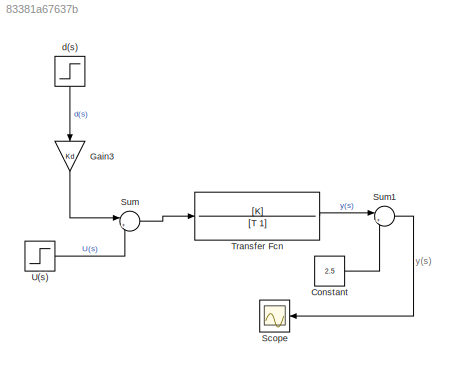
MODEL slx_83381a67637b
KIND model
CONFIG AbsTol = auto
CONFIG EnableMultiTasking = off
CONFIG FixedStep = auto
CONFIG MaxStep = auto
CONFIG MinStep = auto
CONFIG RelTol = 1e-3
CONFIG SampleTimeConstraint = Unconstrained
CONFIG SolverName = VariableStepAuto
CONFIG StartTime = 0.0
CONFIG StopTime = 10.0
BLOCK [Constant] Constant
  Value = 2.5
BLOCK [Gain] Gain3
  Gain = Kd
  NameLocation = left
BLOCK [Scope] Scope
  Floating = off
  NumInputPorts = 1
  Ports = [1]
  ScopeSpecificationString = Simulink.scopes.TimeScopeBlockCfg('CurrentConfiguration', extmgr.ConfigurationSet(extmgr.Configuration('Core','General UI',true),extmgr.Configuration('Core','Source UI',true),extmgr.Configuration('Sources','WiredSimulink',true),extmgr.Configuration('Visuals','Time Domain',true,'SerializedDisplays',{struct('MinYLimReal','-13.1287','MaxYLimReal','118.15828','YLabelReal','','MinYLimMag','0.00000','Ma...<+1332ch>
BLOCK [Sum] Sum
  Inputs = |++
  Ports = [2, 1]
BLOCK [Sum] Sum1
  Inputs = |++
  Ports = [2, 1]
BLOCK [TransferFcn] Transfer Fcn
  Denominator = [T 1]
  Numerator = [K]
BLOCK [Step] U(s)
  Before = 100
  SampleTime = 0
BLOCK [Step] d(s)
  Before = Kvs
  NameLocation = left
  SampleTime = 0
ANNOTATION (root): y(s)
LINE Constant:1 -> Sum1:2
LINE Gain3:1 -> Sum:1
LINE Sum1:1 -> Scope:1
LINE Sum:1 -> Transfer Fcn:1
LINE Transfer Fcn:1 -> Sum1:1
LINE U(s):1 -> Sum:2
LINE d(s):1 -> Gain3:1
